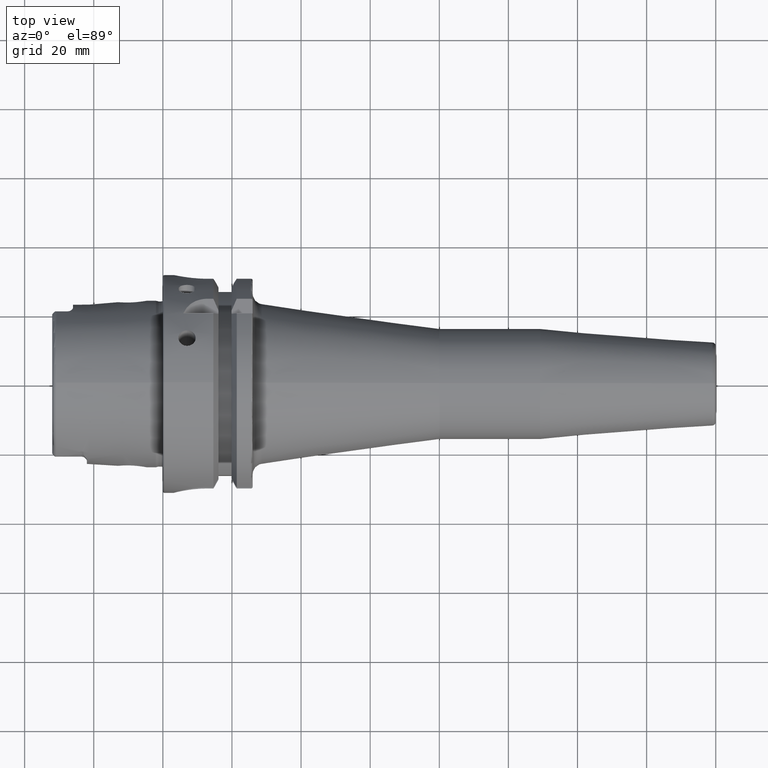
[diagram: clean part render]
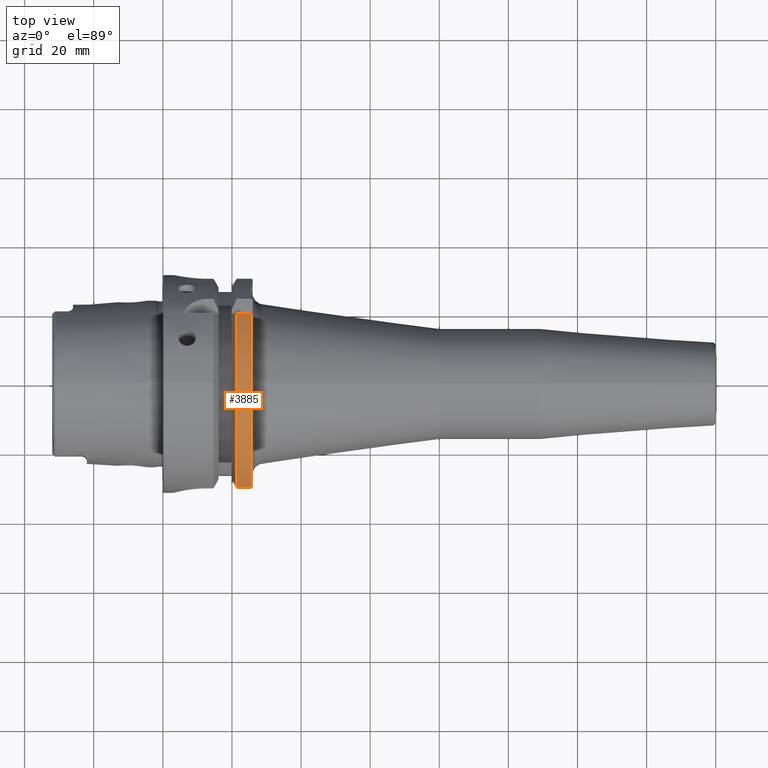
[diagram: same view with one face highlighted and labeled with its STEP entity id]
A machine part, top view. The second image highlights one B-rep face of the part: STEP entity #3885.
In plain terms, the highlighted cylindrical surface (partial cylindrical patch) has radius 31.5 mm, axis along (1, 0, 0).
Its self-contained STEP definition (entity closure, byte-faithful):
#734=DIRECTION('',(1.E0,0.E0,0.E0));
#735=VECTOR('',#734,4.122500945915E0);
#736=CARTESIAN_POINT('',(2.137749905409E1,-3.007314630073E1,9.373146300730E0));
#737=LINE('',#736,#735);
#738=DIRECTION('',(1.E0,0.E0,0.E0));
#739=VECTOR('',#738,4.122500945915E0);
#740=CARTESIAN_POINT('',(2.137749905409E1,2.E1,2.433618704728E1));
#741=LINE('',#740,#739);
#2006=CARTESIAN_POINT('',(2.55E1,-3.007314630073E1,9.373146300730E0));
#2157=CARTESIAN_POINT('',(2.137749905409E1,-3.007314630073E1,9.373146300730E0));
#2180=CARTESIAN_POINT('',(2.137749905409E1,2.E1,2.433618704728E1));
#2182=CARTESIAN_POINT('',(2.137749905409E1,0.E0,0.E0));
#2183=DIRECTION('',(1.E0,0.E0,0.E0));
#2184=DIRECTION('',(0.E0,6.349206349206E-1,7.725773665802E-1));
#2185=AXIS2_PLACEMENT_3D('',#2182,#2183,#2184);
#2386=CARTESIAN_POINT('',(2.55E1,2.E1,2.433618704728E1));
#2403=CARTESIAN_POINT('',(2.55E1,0.E0,0.E0));
#2404=DIRECTION('',(-1.E0,0.E0,0.E0));
#2405=DIRECTION('',(0.E0,-9.547030571660E-1,2.975602000232E-1));
#2406=AXIS2_PLACEMENT_3D('',#2403,#2404,#2405);
#2697=VERTEX_POINT('',#2180);
#2889=VERTEX_POINT('',#2157);
#2937=VERTEX_POINT('',#2386);
#2941=VERTEX_POINT('',#2006);
#3870=CARTESIAN_POINT('',(0.E0,0.E0,0.E0));
#3871=DIRECTION('',(1.E0,0.E0,0.E0));
#3872=DIRECTION('',(0.E0,0.E0,1.E0));
#3873=AXIS2_PLACEMENT_3D('',#3870,#3871,#3872);
#3874=CYLINDRICAL_SURFACE('',#3873,3.15E1);
#3876=ORIENTED_EDGE('',*,*,#3875,.F.);
#3878=ORIENTED_EDGE('',*,*,#3877,.F.);
#3880=ORIENTED_EDGE('',*,*,#3879,.F.);
#3882=ORIENTED_EDGE('',*,*,#3881,.T.);
#3883=EDGE_LOOP('',(#3876,#3878,#3880,#3882));
#3884=FACE_OUTER_BOUND('',#3883,.F.);
#3885=ADVANCED_FACE('',(#3884),#3874,.T.);
#2186=CIRCLE('',#2185,3.15E1);
#2407=CIRCLE('',#2406,3.15E1);
#3875=EDGE_CURVE('',#2941,#2937,#2407,.T.);
#3877=EDGE_CURVE('',#2889,#2941,#737,.T.);
#3879=EDGE_CURVE('',#2697,#2889,#2186,.T.);
#3881=EDGE_CURVE('',#2697,#2937,#741,.T.);